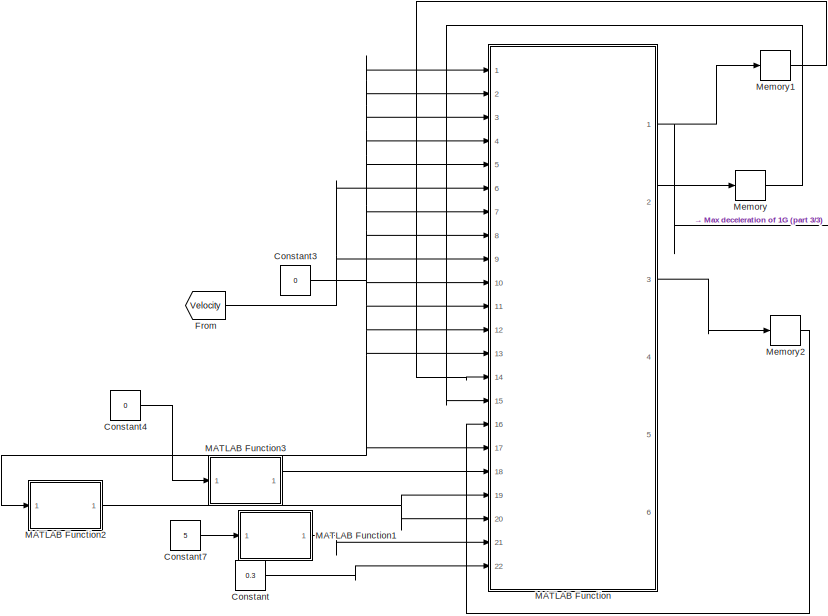
[diagram: root canvas - part 1/3, left side, full height]
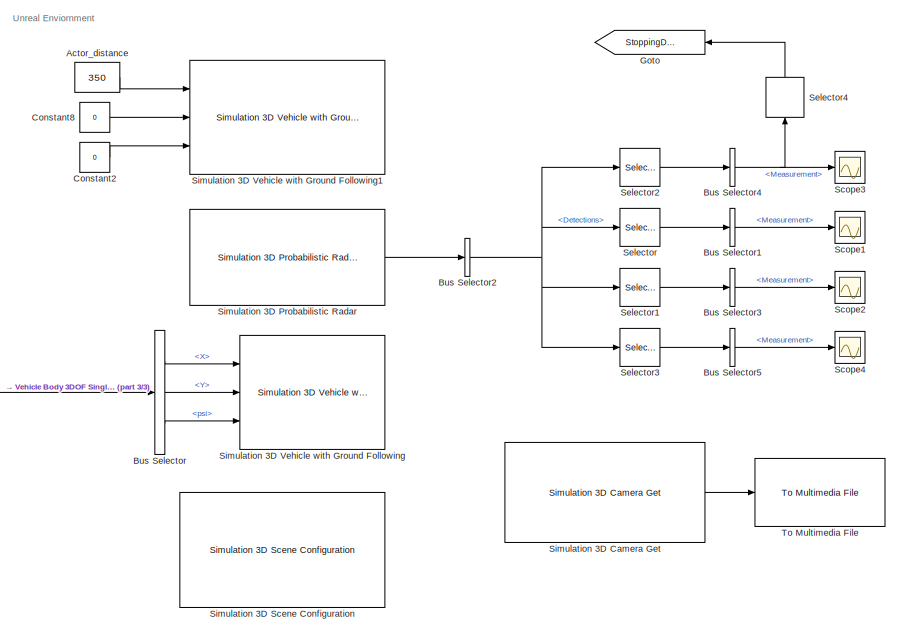
[diagram: root canvas - part 2/3, right side, full height]
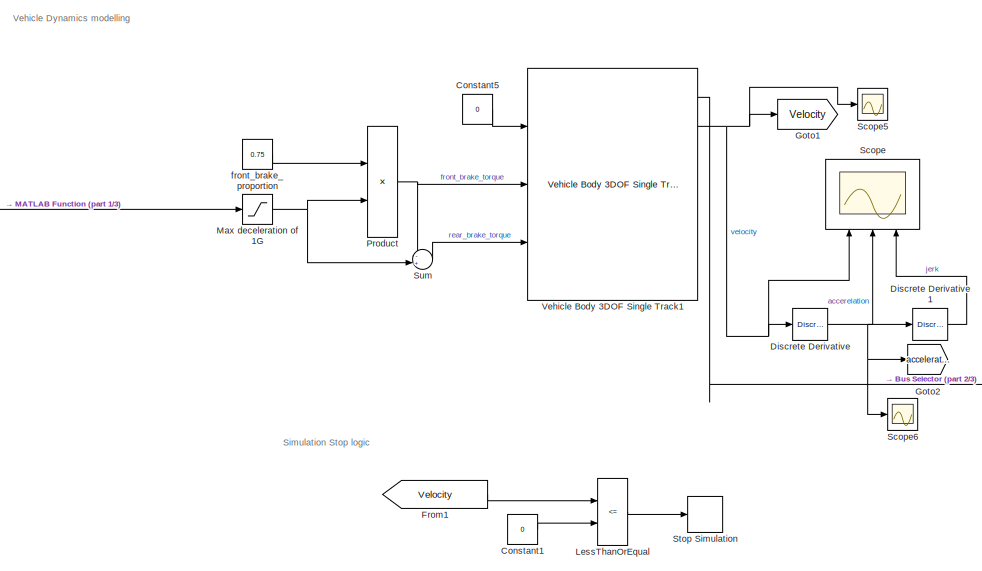
[diagram: root canvas - part 3/3, center side, full height]
MODEL slx_4478ace87878
KIND model
CONFIG AbsTol = auto
CONFIG EnableMultiTasking = off
CONFIG FixedStep = simtime
CONFIG InitFcn = clear all \n\n% These are the starting values \ninitial_stopping_distance = 350; % set the stopping distance in m (6.368 and 11 is max deccel -9.5)\ninitial_velocity = 37.77; % set the initial velocity in m/s\nroad_grade = 0; %set road grade in degrees\nsampletime = 0.01; %set the sample time of the controller \nTs = sampletime;\nsimtime = sampletime; %simulation set\n\ninitialdeccelcalc = -(initial_velocit...<+35ch>
CONFIG MaxStep = auto
CONFIG MinStep = auto
CONFIG RelTol = 1e-3
CONFIG SampleTimeConstraint = Unconstrained
CONFIG SolverName = ode4
CONFIG StartTime = 0.0
CONFIG StopTime = 20
BLOCK [Constant] Actor_distance
  NameLocation = top
  Value = 350
BLOCK [BusSelector] Bus Selector
  OutputSignals = InertFrm.Cg.Disp.X,InertFrm.Cg.Disp.Y,InertFrm.Cg.Ang.psi
  Ports = [1, 3]
BLOCK [BusSelector] Bus Selector1
  OutputSignals = Measurement
  Ports = [1, 1]
BLOCK [BusSelector] Bus Selector2
  OutputSignals = Detections
  Ports = [1, 1]
BLOCK [BusSelector] Bus Selector3
  OutputSignals = Measurement
  Ports = [1, 1]
BLOCK [BusSelector] Bus Selector4
  OutputSignals = Measurement
  Ports = [1, 1]
BLOCK [BusSelector] Bus Selector5
  OutputSignals = Measurement
  Ports = [1, 1]
BLOCK [Constant] Constant
  Value = 0.3
BLOCK [Constant] Constant1
  Value = 0
BLOCK [Constant] Constant2
  Value = 0
BLOCK [Constant] Constant3
  Value = 0
BLOCK [Constant] Constant4
  Value = 0
BLOCK [Constant] Constant5
  Value = 0
BLOCK [Constant] Constant7
  SampleTime = -1
  Value = 5
BLOCK [Constant] Constant8
  Value = 0
BLOCK [Reference] Discrete Derivative  REF=simulink/Discrete/Discrete Derivative
  Ports = [1, 1]
  SourceBlock = simulink/Discrete/Discrete Derivative
  SourceProductBaseCode = SL
  SourceType = Discrete Derivative
BLOCK [Reference] Discrete Derivative1  REF=simulink/Discrete/Discrete Derivative
  Ports = [1, 1]
  SourceBlock = simulink/Discrete/Discrete Derivative
  SourceProductBaseCode = SL
  SourceType = Discrete Derivative
BLOCK [From] From
  GotoTag = Velocity
  TagVisibility = global
BLOCK [From] From1
  GotoTag = Velocity
  TagVisibility = global
BLOCK [Goto] Goto
  GotoTag = StoppingDistance
  NameLocation = top
BLOCK [Goto] Goto1
  GotoTag = Velocity
  TagVisibility = global
BLOCK [Goto] Goto2
  GotoTag = acceleration
BLOCK [RelationalOperator] LessThanOrEqual
  InputSameDT = off
  Operator = <=
  OutDataTypeStr = boolean
  Ports = [2, 1]
  RndMeth = Simplest
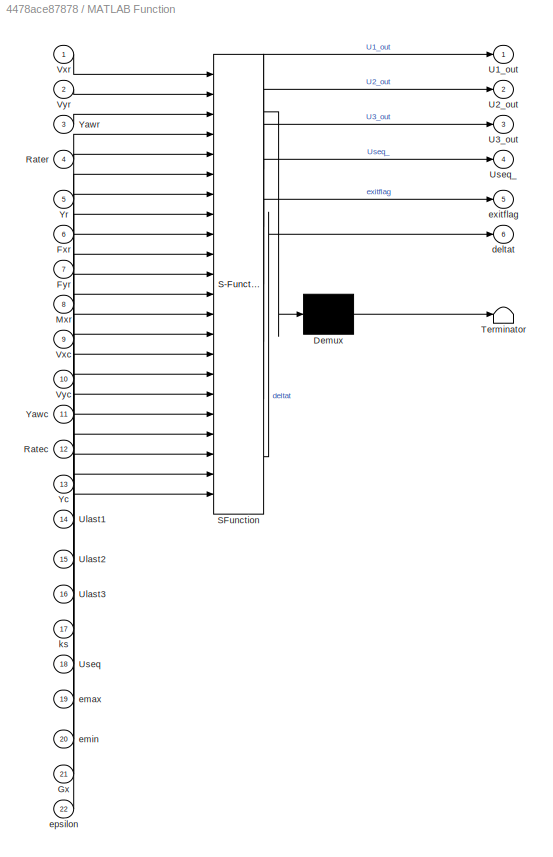
BLOCK [SubSystem] MATLAB Function
  ErrorFcn = Stateflow.Translate.translate
  PermitHierarchicalResolution = ExplicitOnly
  Ports = [22, 6]
  RequestExecContextInheritance = off
  SFBlockType = MATLAB Function
  TreatAsAtomicUnit = on
BLOCK [Demux] MATLAB Function/ Demux 
  Outputs = 1
  Ports = [1, 1]
BLOCK [S-Function] MATLAB Function/ SFunction 
  EnableBusSupport = on
  FunctionName = sf_sfun
  PortCounts = [22 7]
  Ports = [22, 7]
  SFcnIsStateOwnerBlock = off
  SFunctionDeploymentMode = off
  Tag = Stateflow S-Function 2
BLOCK [Terminator] MATLAB Function/ Terminator 
BLOCK [Inport] MATLAB Function/Fxr
  Port = 6
BLOCK [Inport] MATLAB Function/Fyr
  Port = 7
BLOCK [Inport] MATLAB Function/Gx
  Port = 21
BLOCK [Inport] MATLAB Function/Mxr
  Port = 8
BLOCK [Inport] MATLAB Function/Ratec
  Port = 12
BLOCK [Inport] MATLAB Function/Rater
  Port = 4
BLOCK [Outport] MATLAB Function/U1_out
BLOCK [Outport] MATLAB Function/U2_out
  Port = 2
BLOCK [Outport] MATLAB Function/U3_out
  Port = 3
BLOCK [Inport] MATLAB Function/Ulast1
  Port = 14
BLOCK [Inport] MATLAB Function/Ulast2
  Port = 15
BLOCK [Inport] MATLAB Function/Ulast3
  Port = 16
BLOCK [Inport] MATLAB Function/Useq
  Port = 18
BLOCK [Outport] MATLAB Function/Useq_
  Port = 4
BLOCK [Inport] MATLAB Function/Vxc
  Port = 9
BLOCK [Inport] MATLAB Function/Vxr
BLOCK [Inport] MATLAB Function/Vyc
  Port = 10
BLOCK [Inport] MATLAB Function/Vyr
  Port = 2
BLOCK [Inport] MATLAB Function/Yawc
  Port = 11
BLOCK [Inport] MATLAB Function/Yawr
  Port = 3
BLOCK [Inport] MATLAB Function/Yc
  Port = 13
BLOCK [Inport] MATLAB Function/Yr
  Port = 5
BLOCK [Outport] MATLAB Function/deltat
  Port = 6
BLOCK [Inport] MATLAB Function/emax
  Port = 19
BLOCK [Inport] MATLAB Function/emin
  Port = 20
BLOCK [Inport] MATLAB Function/epsilon
  Port = 22
BLOCK [Outport] MATLAB Function/exitflag
  Port = 5
BLOCK [Inport] MATLAB Function/ks
  Port = 17
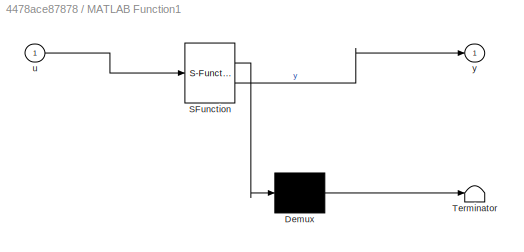
BLOCK [SubSystem] MATLAB Function1
  ErrorFcn = Stateflow.Translate.translate
  PermitHierarchicalResolution = ExplicitOnly
  Ports = [1, 1]
  RequestExecContextInheritance = off
  SFBlockType = MATLAB Function
  TreatAsAtomicUnit = on
BLOCK [Demux] MATLAB Function1/ Demux 
  Outputs = 1
  Ports = [1, 1]
BLOCK [S-Function] MATLAB Function1/ SFunction 
  EnableBusSupport = on
  FunctionName = sf_sfun
  PortCounts = [1 2]
  Ports = [1, 2]
  SFcnIsStateOwnerBlock = off
  SFunctionDeploymentMode = off
  Tag = Stateflow S-Function 1
BLOCK [Terminator] MATLAB Function1/ Terminator 
BLOCK [Inport] MATLAB Function1/u
BLOCK [Outport] MATLAB Function1/y
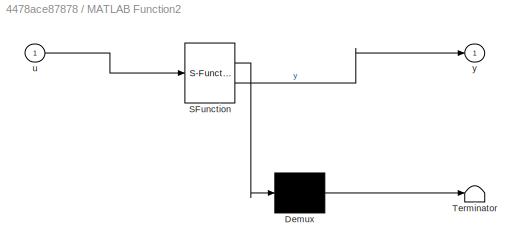
BLOCK [SubSystem] MATLAB Function2
  ErrorFcn = Stateflow.Translate.translate
  PermitHierarchicalResolution = ExplicitOnly
  Ports = [1, 1]
  RequestExecContextInheritance = off
  SFBlockType = MATLAB Function
  TreatAsAtomicUnit = on
BLOCK [Demux] MATLAB Function2/ Demux 
  Outputs = 1
  Ports = [1, 1]
BLOCK [S-Function] MATLAB Function2/ SFunction 
  EnableBusSupport = on
  FunctionName = sf_sfun
  PortCounts = [1 2]
  Ports = [1, 2]
  SFcnIsStateOwnerBlock = off
  SFunctionDeploymentMode = off
  Tag = Stateflow S-Function 3
BLOCK [Terminator] MATLAB Function2/ Terminator 
BLOCK [Inport] MATLAB Function2/u
BLOCK [Outport] MATLAB Function2/y
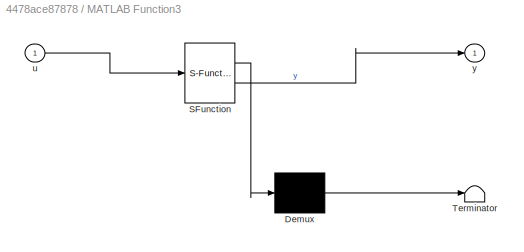
BLOCK [SubSystem] MATLAB Function3
  ErrorFcn = Stateflow.Translate.translate
  PermitHierarchicalResolution = ExplicitOnly
  Ports = [1, 1]
  RequestExecContextInheritance = off
  SFBlockType = MATLAB Function
  TreatAsAtomicUnit = on
BLOCK [Demux] MATLAB Function3/ Demux 
  Outputs = 1
  Ports = [1, 1]
BLOCK [S-Function] MATLAB Function3/ SFunction 
  EnableBusSupport = on
  FunctionName = sf_sfun
  PortCounts = [1 2]
  Ports = [1, 2]
  SFcnIsStateOwnerBlock = off
  SFunctionDeploymentMode = off
  Tag = Stateflow S-Function 4
BLOCK [Terminator] MATLAB Function3/ Terminator 
BLOCK [Inport] MATLAB Function3/u
BLOCK [Outport] MATLAB Function3/y
BLOCK [Saturate] Max deceleration of 1G
  LowerLimit = -1605*10
  UpperLimit = 0
BLOCK [Memory] Memory
BLOCK [Memory] Memory1
BLOCK [Memory] Memory2
BLOCK [Product] Product
  Ports = [2, 1]
BLOCK [Scope] Scope
  Floating = off
  NameLocation = right
  NumInputPorts = 3
  Ports = [3]
  ScopeSpecificationString = Simulink.scopes.TimeScopeBlockCfg('CurrentConfiguration', extmgr.ConfigurationSet(extmgr.Configuration('Core','General UI',true),extmgr.Configuration('Core','Source UI',true),extmgr.Configuration('Sources','WiredSimulink',true),extmgr.Configuration('Visuals','Time Domain',true,'SerializedDisplays',{struct('MinYLimReal','-67.06002','MaxYLimReal','57.03874','YLabelReal','','MinYLimMag','0.00000','Ma...<+1425ch>
BLOCK [Scope] Scope1
  Floating = off
  NumInputPorts = 1
  Ports = [1]
  ScopeSpecificationString = Simulink.scopes.TimeScopeBlockCfg('CurrentConfiguration', extmgr.ConfigurationSet(extmgr.Configuration('Core','General UI',true),extmgr.Configuration('Core','Source UI',true),extmgr.Configuration('Sources','WiredSimulink',true,'DataLoggingVariableName','ScopeData1'),extmgr.Configuration('Visuals','Time Domain',true,'SerializedDisplays',{struct('MinYLimReal','-1.76806','MaxYLimReal','15.91255','YLa...<+1466ch>
BLOCK [Scope] Scope2
  Floating = off
  NumInputPorts = 1
  Ports = [1]
  ScopeSpecificationString = Simulink.scopes.TimeScopeBlockCfg('CurrentConfiguration', extmgr.ConfigurationSet(extmgr.Configuration('Core','General UI',true),extmgr.Configuration('Core','Source UI',true),extmgr.Configuration('Sources','WiredSimulink',true,'DataLoggingVariableName','ScopeData2'),extmgr.Configuration('Visuals','Time Domain',true,'SerializedDisplays',{struct('MinYLimReal','-1.00000','MaxYLimReal','1.00000','YLab...<+1462ch>
BLOCK [Scope] Scope3
  Floating = off
  NumInputPorts = 1
  Ports = [1]
  ScopeSpecificationString = Simulink.scopes.TimeScopeBlockCfg('CurrentConfiguration', extmgr.ConfigurationSet(extmgr.Configuration('Core','General UI',true),extmgr.Configuration('Core','Source UI',true),extmgr.Configuration('Sources','WiredSimulink',true,'DataLoggingVariableName','ScopeData3'),extmgr.Configuration('Visuals','Time Domain',true,'SerializedDisplays',{struct('MinYLimReal','-38.52119','MaxYLimReal','337.37943','Y...<+1491ch>
BLOCK [Scope] Scope4
  Floating = off
  NumInputPorts = 1
  Ports = [1]
  ScopeSpecificationString = Simulink.scopes.TimeScopeBlockCfg('CurrentConfiguration', extmgr.ConfigurationSet(extmgr.Configuration('Core','General UI',true),extmgr.Configuration('Core','Source UI',true),extmgr.Configuration('Sources','WiredSimulink',true,'DataLoggingVariableName','ScopeData4'),extmgr.Configuration('Visuals','Time Domain',true,'SerializedDisplays',{struct('MinYLimReal','-1.00000','MaxYLimReal','1.00000','YLab...<+1462ch>
BLOCK [Scope] Scope5
  Floating = off
  NumInputPorts = 1
  Ports = [1]
  ScopeSpecificationString = Simulink.scopes.TimeScopeBlockCfg('CurrentConfiguration', extmgr.ConfigurationSet(extmgr.Configuration('Core','General UI',true),extmgr.Configuration('Core','Source UI',true),extmgr.Configuration('Sources','WiredSimulink',true,'DataLoggingVariableName','ScopeData1'),extmgr.Configuration('Visuals','Time Domain',true,'SerializedDisplays',{struct('MinYLimReal','-1.24413','MaxYLimReal','42.1049','YLab...<+1396ch>
BLOCK [Scope] Scope6
  Floating = off
  NumInputPorts = 1
  Ports = [1]
  ScopeSpecificationString = Simulink.scopes.TimeScopeBlockCfg('CurrentConfiguration', extmgr.ConfigurationSet(extmgr.Configuration('Core','General UI',true),extmgr.Configuration('Core','Source UI',true),extmgr.Configuration('Sources','WiredSimulink',true,'DataLoggingVariableName','ScopeData1','DataLoggingSaveFormat','Array','DataLoggingLimitDataPoints',true,'DataLoggingDecimation','1'),extmgr.Configuration('Visuals','Time Do...<+1654ch>
BLOCK [Selector] Selector
  IndexOptions = Index vector (dialog)
  Indices = [3]
  InputPortWidth = 10
  OutputSizes = 1
  Ports = [1, 1]
BLOCK [Selector] Selector1
  IndexOptions = Index vector (dialog)
  Indices = [5]
  InputPortWidth = 10
  OutputSizes = 1
  Ports = [1, 1]
BLOCK [Selector] Selector2
  IndexOptions = Index vector (dialog)
  Indices = [1]
  InputPortWidth = 10
  OutputSizes = 1
  Ports = [1, 1]
BLOCK [Selector] Selector3
  IndexOptions = Index vector (dialog)
  Indices = [7]
  InputPortWidth = 10
  OutputSizes = 1
  Ports = [1, 1]
BLOCK [Selector] Selector4
  IndexOptions = Index vector (dialog)
  Indices = [1]
  InputPortWidth = 3
  NameLocation = right
  OutputSizes = 1
  Ports = [1, 1]
BLOCK [Reference] Simulation 3D Camera Get  REF=sim3dlib/Simulation 3D Camera Get
  Ports = [0, 1]
  Priority = 1
  SourceBlock = sim3dlib/Simulation 3D Camera Get
  SourceProductBaseCode = AE,DR,UV,VE
  SourceType = Simulation 3D Camera Get
BLOCK [Reference] Simulation 3D Probabilistic Radar  REF=sim3dprobsensorlib/Simulation 3D Probabilistic Radar
  Ports = [0, 1]
  Priority = 1
  SourceBlock = sim3dprobsensorlib/Simulation 3D Probabilistic Radar
  SourceProductBaseCode = AE,DR,UV,VE
  SourceType = Simulation 3D Probabilistic Radar
BLOCK [Reference] Simulation 3D Scene Configuration  REF=sim3dlib/Simulation 3D Scene Configuration
  Ports = []
  Priority = 0
  SourceBlock = sim3dlib/Simulation 3D Scene Configuration
  SourceProductBaseCode = AE,DR,UV,VE
  SourceType = Simulation 3D Scene Configuration
BLOCK [Reference] Simulation 3D Vehicle with Ground Following  REF=vdynlib/Vehicle Scenarios/Sim3D/Sim3D Vehicle/Components/Simulation 3D Vehicle with Ground Following
  Ports = [3]
  Priority = -1
  SourceBlock = vdynlib/Vehicle Scenarios/Sim3D/Sim3D Vehicle/Components/Simulation 3D Vehicle with Ground Following
  SourceProductBaseCode = VE
  SourceType = Simulation 3D Vehicle with Ground Following
BLOCK [Reference] Simulation 3D Vehicle with Ground Following1  REF=vdynlib/Vehicle Scenarios/Sim3D/Sim3D Vehicle/Components/Simulation 3D Vehicle with Ground Following
  Ports = [3]
  Priority = -1
  SourceBlock = vdynlib/Vehicle Scenarios/Sim3D/Sim3D Vehicle/Components/Simulation 3D Vehicle with Ground Following
  SourceProductBaseCode = VE
  SourceType = Simulation 3D Vehicle with Ground Following
BLOCK [Stop] Stop Simulation
BLOCK [Sum] Sum
  Inputs = -+|
  Ports = [2, 1]
BLOCK [Reference] To Multimedia File  REF=dspvision/To Multimedia File
  Ports = [1]
  SourceBlock = dspvision/To Multimedia File
  SourceProductBaseCode = DS,HW,VP
  SourceType = To Multimedia File
BLOCK [Reference] Vehicle Body 3DOF Single Track1  REF=autolibshared/Vehicle Body 3DOF Single Track
  Ports = [3, 7]
  SourceBlock = autolibshared/Vehicle Body 3DOF Single Track
  SourceProductBaseCode = PW,DR,MT,UV,VE
  SourceType = Vehicle Body 3DOF Lateral
BLOCK [Constant] front_brake_proportion
  Value = 0.75
ANNOTATION (root): Simulation Stop logic
ANNOTATION (root): Unreal Enviornment
ANNOTATION (root): Vehicle Dynamics modelling
LINE Actor_distance:1 -> Simulation 3D Vehicle with Ground Following1:1
LINE Bus Selector1:1 -> Scope1:1
NET Bus Selector2:1 -> Selector1:1, Selector2:1, Selector3:1, Selector:1
LINE Bus Selector3:1 -> Scope2:1
NET Bus Selector4:1 -> Scope3:1, Selector4:1
LINE Bus Selector5:1 -> Scope4:1
LINE Bus Selector:1 -> Simulation 3D Vehicle with Ground Following:1
LINE Bus Selector:2 -> Simulation 3D Vehicle with Ground Following:2
LINE Bus Selector:3 -> Simulation 3D Vehicle with Ground Following:3
LINE Constant1:1 -> LessThanOrEqual:2
LINE Constant2:1 -> Simulation 3D Vehicle with Ground Following1:3
NET Constant3:1 -> MATLAB Function2:1, MATLAB Function:1, MATLAB Function:10, MATLAB Function:11, MATLAB Function:12, MATLAB Function:13, MATLAB Function:17, MATLAB Function:2, MATLAB Function:3, MATLAB Function:4, MATLAB Function:5, MATLAB Function:7, MATLAB Function:8
LINE Constant4:1 -> MATLAB Function3:1
LINE Constant5:1 -> Vehicle Body 3DOF Single Track1:1
LINE Constant7:1 -> MATLAB Function1:1
LINE Constant8:1 -> Simulation 3D Vehicle with Ground Following1:2
LINE Constant:1 -> MATLAB Function:22
LINE Discrete Derivative1:1 -> Scope:3
NET Discrete Derivative:1 -> Discrete Derivative1:1, Goto2:1, Scope6:1, Scope:2
LINE From1:1 -> LessThanOrEqual:1
NET From:1 -> MATLAB Function:6, MATLAB Function:9
LINE LessThanOrEqual:1 -> Stop Simulation:1
LINE MATLAB Function1:1 -> MATLAB Function:21
NET MATLAB Function2:1 -> MATLAB Function:19, MATLAB Function:20
LINE MATLAB Function3:1 -> MATLAB Function:18
NET MATLAB Function:1 -> Max deceleration of 1G:1, Memory1:1
LINE MATLAB Function:2 -> Memory:1
LINE MATLAB Function:3 -> Memory2:1
NET Max deceleration of 1G:1 -> Product:2, Sum:2
LINE Memory1:1 -> MATLAB Function:14
LINE Memory2:1 -> MATLAB Function:16
LINE Memory:1 -> MATLAB Function:15
NET Product:1 -> Sum:1, Vehicle Body 3DOF Single Track1:2
LINE Selector1:1 -> Bus Selector3:1
LINE Selector2:1 -> Bus Selector4:1
LINE Selector3:1 -> Bus Selector5:1
LINE Selector4:1 -> Goto:1
LINE Selector:1 -> Bus Selector1:1
LINE Simulation 3D Camera Get:1 -> To Multimedia File:1
LINE Simulation 3D Probabilistic Radar:1 -> Bus Selector2:1
LINE Sum:1 -> Vehicle Body 3DOF Single Track1:3
LINE Vehicle Body 3DOF Single Track1:1 -> Bus Selector:1
NET Vehicle Body 3DOF Single Track1:2 -> Discrete Derivative:1, Goto1:1, Scope5:1, Scope:1
LINE front_brake_proportion:1 -> Product:1
note: NET lines group one-source signal fan-out (src -> all destinations, sorted); 1:1 wires keep LINE
CHART MATLAB Function1 states=1 transitions=1
  STATE_LABEL 'eML_blk_kernel()'
  STATE_LABEL 'SCRIPT:\nfunction y = fcn(u)\n\ny = u*ones(70,1);'
CHART MATLAB Function states=1 transitions=1
  STATE_LABEL 'eML_blk_kernel()'
  STATE_LABEL "SCRIPT:\nfunction [U1_out, U2_out, U3_out, Useq_, exitflag, deltat] = ...\n    mPc(Vxr,Vyr,Yawr,Rater,Yr,Fxr,Fyr,Mxr,Vxc,Vyc,Yawc,Ratec,Yc,...\n    Ulast1,Ulast2,Ulast3,ks,Useq,emax,emin,Gx,epsilon) %#ok<STOUT> \n%Vyr lateral velocity, Yawr yaw angle, Rater yaw rate, Yr lateral position\n%Fyr lateral force in front tyre,Mxr moment generated by longitudinal force\n%'r'means reference | | 'c'means current...<+3608ch>"
CHART MATLAB Function2 states=1 transitions=1
  STATE_LABEL 'eML_blk_kernel()'
  STATE_LABEL 'SCRIPT:\nfunction y = fcn(u)\n\ny = u*ones(70,1);;\n'
CHART MATLAB Function3 states=1 transitions=1
  STATE_LABEL 'eML_blk_kernel()'
  STATE_LABEL 'SCRIPT:\nfunction y = fcn(u)\n\ny = u*ones(71,3);\n'
CHART  states=0 transitions=0
CHART  states=0 transitions=0
CHART  states=0 transitions=0
CHART  states=0 transitions=0
